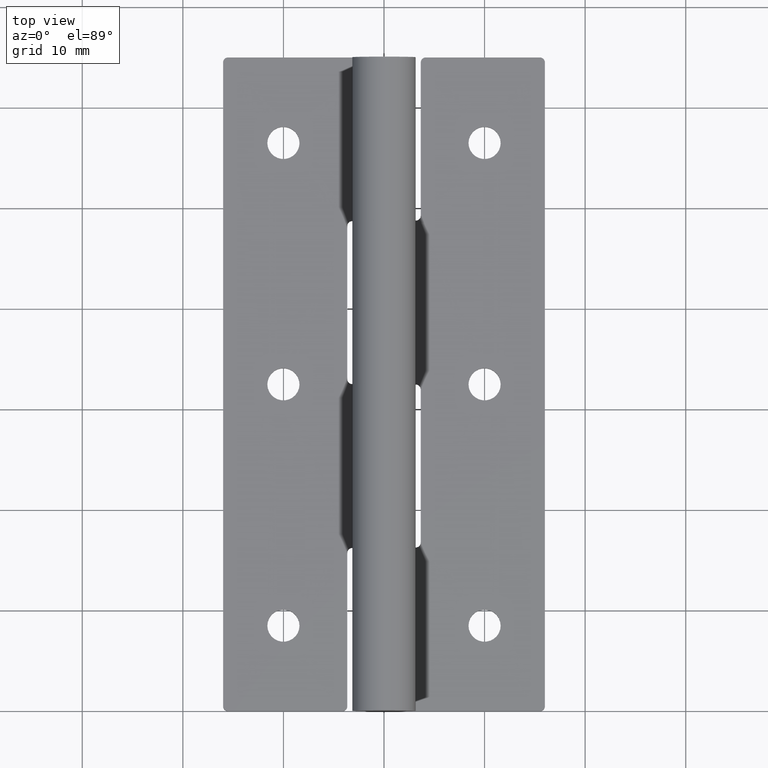
[diagram: clean part render]
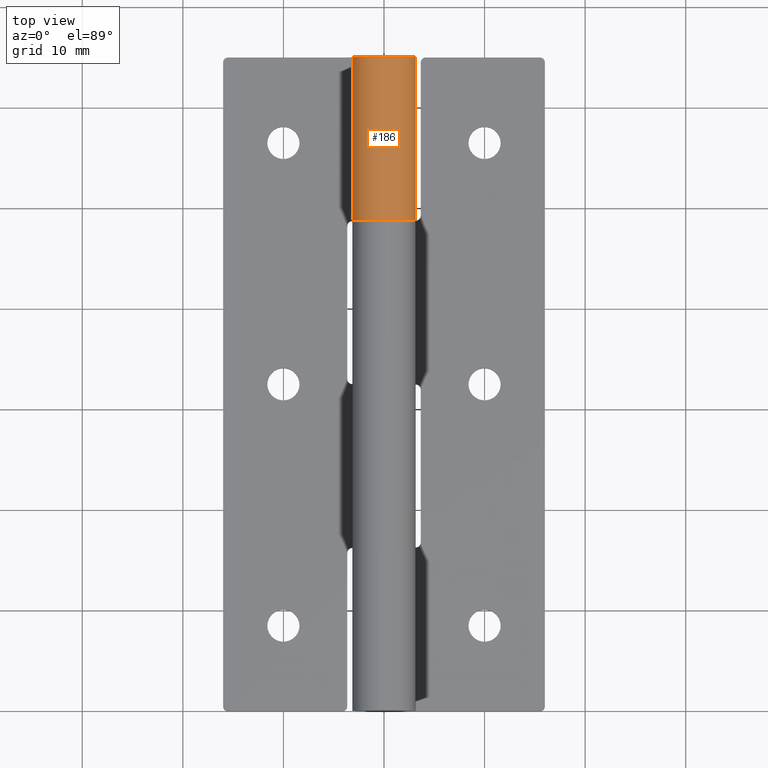
[diagram: same view with one face highlighted and labeled with its STEP entity id]
A machine part, top view. The second image highlights one B-rep face of the part: STEP entity #186.
In plain terms, the highlighted cylindrical surface (edge-blend (fillet) strip) has radius 3.15 mm, axis along (0, 1, 0).
Its self-contained STEP definition (entity closure, byte-faithful):
#186=ADVANCED_FACE('',(#592),#591,.T.);
#591=CYLINDRICAL_SURFACE('',#1021,3.14999799977E+00);
#592=FACE_OUTER_BOUND('',#1022,.T.);
#1018=CARTESIAN_POINT('',(0.00000000000E+00,1.00000000000E+03,4.99999997585E-02));
#1019=DIRECTION('',(-0.00000000000E+00,1.00000000000E+00,0.00000000000E+00));
#1020=DIRECTION('',(-4.92423560103E-01,0.00000000000E+00,-8.70355695940E-01));
#1021=AXIS2_PLACEMENT_3D('',#1018,#1019,#1020);
#1022=EDGE_LOOP('',(#1365,#1366,#1367,#1368));
#1365=ORIENTED_EDGE('',*,*,#1595,.T.);
#1366=ORIENTED_EDGE('',*,*,#1596,.T.);
#1367=ORIENTED_EDGE('',*,*,#1580,.F.);
#1368=ORIENTED_EDGE('',*,*,#1572,.T.);
#1572=EDGE_CURVE('',#2394,#2387,#2395,.T.);
#1580=EDGE_CURVE('',#2394,#2446,#2447,.T.);
#1595=EDGE_CURVE('',#2387,#2548,#2549,.T.);
#1596=EDGE_CURVE('',#2548,#2446,#2555,.T.);
#2387=VERTEX_POINT('',#3169);
#2394=VERTEX_POINT('',#3173);
#2395=CIRCLE('',#3177,3.14999799977E+00);
#2446=VERTEX_POINT('',#3203);
#2447=LINE('',#3204,#3205);
#2548=VERTEX_POINT('',#3269);
#2549=LINE('',#3270,#3271);
#2555=CIRCLE('',#3276,3.14999799977E+00);
#3169=CARTESIAN_POINT('',(-2.74494011222E+00,6.50000000000E+01,-1.49524793467E+00));
#3173=CARTESIAN_POINT('',(2.45942413754E-12,6.50000000000E+01,-3.09999800001E+00));
#3174=CARTESIAN_POINT('',(0.00000000000E+00,6.50000000000E+01,4.99999997585E-02));
#3175=DIRECTION('',(0.00000000000E+00,-1.00000000000E+00,0.00000000000E+00));
#3176=DIRECTION('',(-0.00000000000E+00,-0.00000000000E+00,-1.00000000000E+00));
#3177=AXIS2_PLACEMENT_3D('',#3174,#3175,#3176);
#3203=CARTESIAN_POINT('',(2.45940420807E-12,4.87500000000E+01,-3.09999800001E+00));
#3204=CARTESIAN_POINT('',(2.45942413754E-12,6.50000000000E+01,-3.09999800001E+00));
#3205=VECTOR('',#3206,1.62500000000E+01);
#3206=DIRECTION('',(0.00000000000E+00,-1.00000000000E+00,0.00000000000E+00));
#3269=CARTESIAN_POINT('',(-2.74494011222E+00,4.87500000000E+01,-1.49524793467E+00));
#3270=CARTESIAN_POINT('',(-2.74494011222E+00,6.50000000000E+01,-1.49524793467E+00));
#3271=VECTOR('',#3272,1.62500000000E+01);
#3272=DIRECTION('',(0.00000000000E+00,-1.00000000000E+00,0.00000000000E+00));
#3273=CARTESIAN_POINT('',(0.00000000000E+00,4.87500000000E+01,4.99999997585E-02));
#3274=DIRECTION('',(-2.86051284058E-12,1.00000000000E+00,3.67341984632E-40));
#3275=DIRECTION('',(7.80892521869E-13,2.23375308592E-24,-1.00000000000E+00));
#3276=AXIS2_PLACEMENT_3D('',#3273,#3274,#3275);